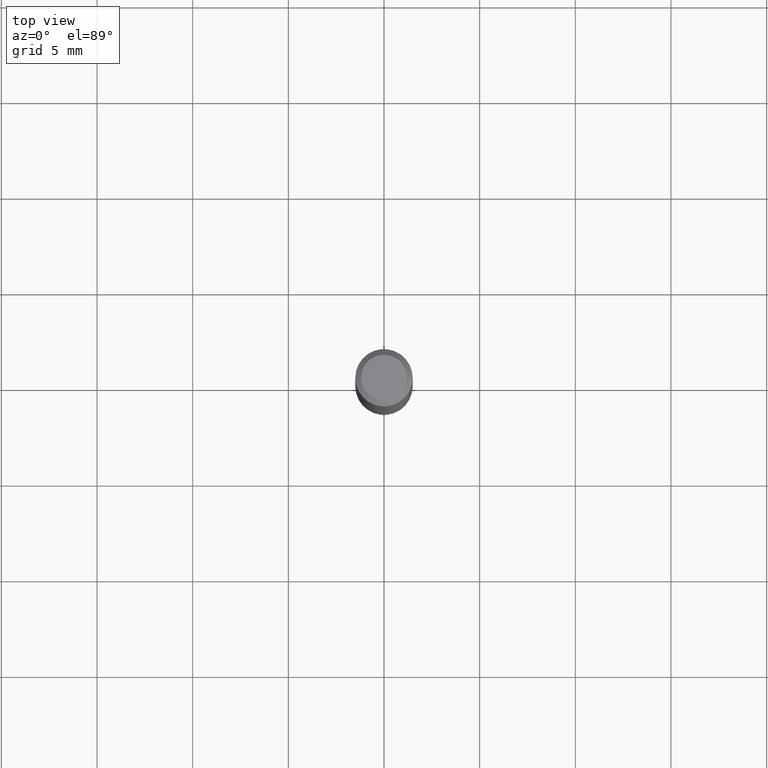
[diagram: clean part render]
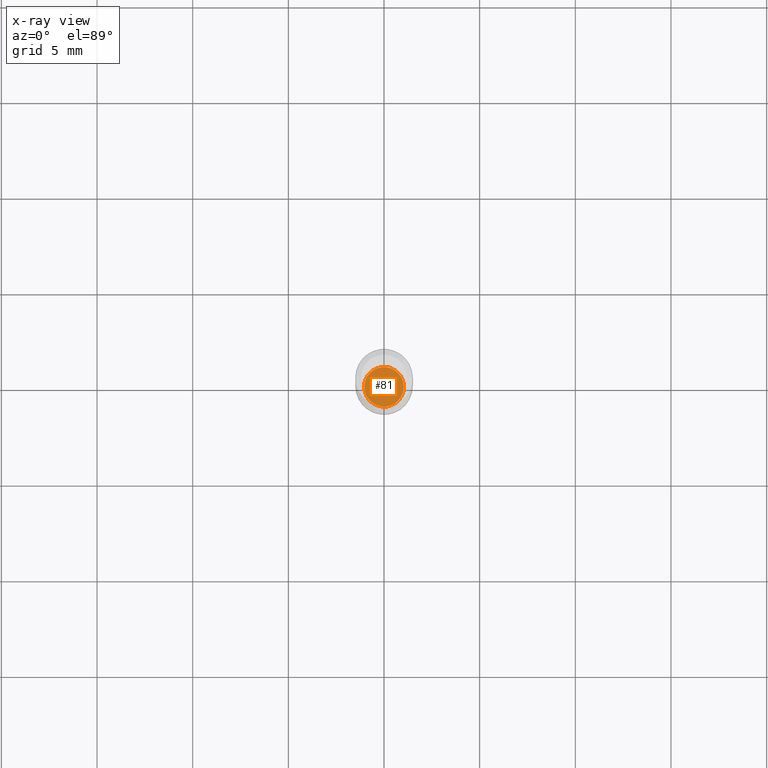
[diagram: x-ray — body ghosted, one internal face saturated and labeled with its STEP entity id]
A machine part, top view, then the same camera in x-ray: the body is ghosted and one INTERNAL B-rep face — a face not visible from any outside direction — is saturated and labeled: STEP entity #81.
In plain terms, the highlighted planar face has unit normal (-0, 0, 1).
Its self-contained STEP definition (entity closure, byte-faithful):
#46 = EDGE_LOOP ( 'NONE', ( #248, #382 ) ) ;
#57 = EDGE_CURVE ( 'NONE', #163, #74, #303, .T. ) ;
#74 = VERTEX_POINT ( 'NONE', #150 ) ;
#81 = ADVANCED_FACE ( 'NONE', ( #442 ), #107, .F. ) ;
#107 = PLANE ( 'NONE',  #397 ) ;
#109 = DIRECTION ( 'NONE',  ( -2.445468806185136597E-29, 3.491481338843145583E-15, 1.000000000000000000 ) ) ;
#150 = CARTESIAN_POINT ( 'NONE',  ( 0.04084999999999999742, -4.106680350747306712E-15, -1.094499999999999806 ) ) ;
#151 = CARTESIAN_POINT ( 'NONE',  ( 2.676565608369631794E-29, -3.821426325363822773E-15, -1.094499999999999806 ) ) ;
#163 = VERTEX_POINT ( 'NONE', #462 ) ;
#244 = DIRECTION ( 'NONE',  ( -2.445468806185136597E-29, 3.491481338843145583E-15, 1.000000000000000000 ) ) ;
#248 = ORIENTED_EDGE ( 'NONE', *, *, #264, .F. ) ;
#264 = EDGE_CURVE ( 'NONE', #74, #163, #361, .T. ) ;
#266 = CARTESIAN_POINT ( 'NONE',  ( 2.676565608369631794E-29, -3.821426325363822773E-15, -1.094499999999999806 ) ) ;
#303 = CIRCLE ( 'NONE', #416, 0.04084999999999999742 ) ;
#361 = CIRCLE ( 'NONE', #485, 0.04084999999999999742 ) ;
#382 = ORIENTED_EDGE ( 'NONE', *, *, #57, .F. ) ;
#397 = AXIS2_PLACEMENT_3D ( 'NONE', #266, #482, #407 ) ;
#407 = DIRECTION ( 'NONE',  ( 1.000000000000000000, -6.982962677686265922E-15, 4.876176775795935793E-29 ) ) ;
#416 = AXIS2_PLACEMENT_3D ( 'NONE', #489, #244, #450 ) ;
#441 = DIRECTION ( 'NONE',  ( 1.000000000000000000, -6.982962677686273021E-15, 0.000000000000000000 ) ) ;
#442 = FACE_OUTER_BOUND ( 'NONE', #46, .T. ) ;
#450 = DIRECTION ( 'NONE',  ( 1.000000000000000000, -6.982962677686273021E-15, 0.000000000000000000 ) ) ;
#462 = CARTESIAN_POINT ( 'NONE',  ( -0.04084999999999999742, -3.528520390631710665E-15, -1.094499999999999806 ) ) ;
#482 = DIRECTION ( 'NONE',  ( -2.438088387897960049E-29, 3.491481338843145188E-15, 1.000000000000000000 ) ) ;
#485 = AXIS2_PLACEMENT_3D ( 'NONE', #151, #109, #441 ) ;
#489 = CARTESIAN_POINT ( 'NONE',  ( 2.676565608369631794E-29, -3.821426325363822773E-15, -1.094499999999999806 ) ) ;